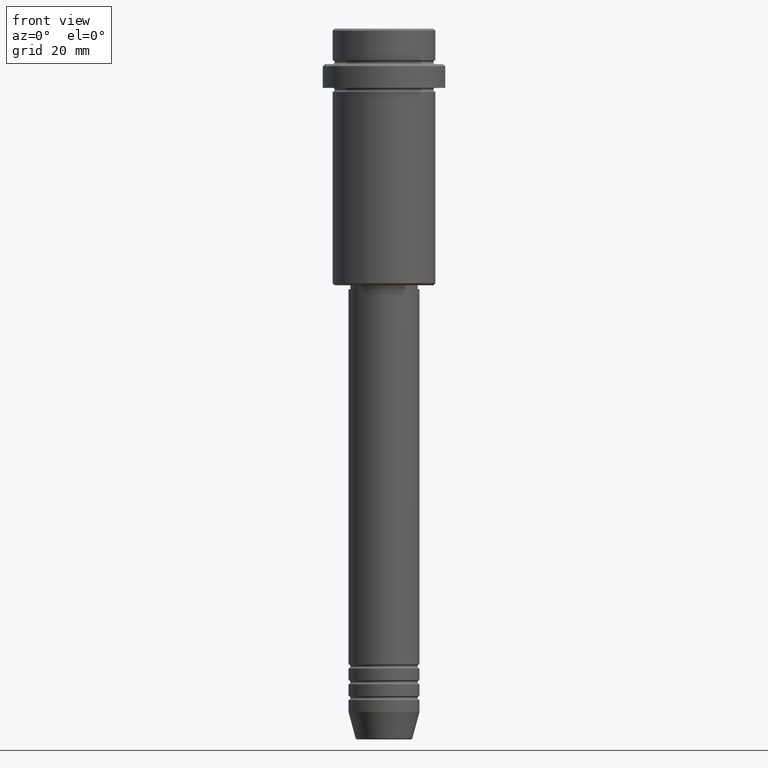
[diagram: clean part render]
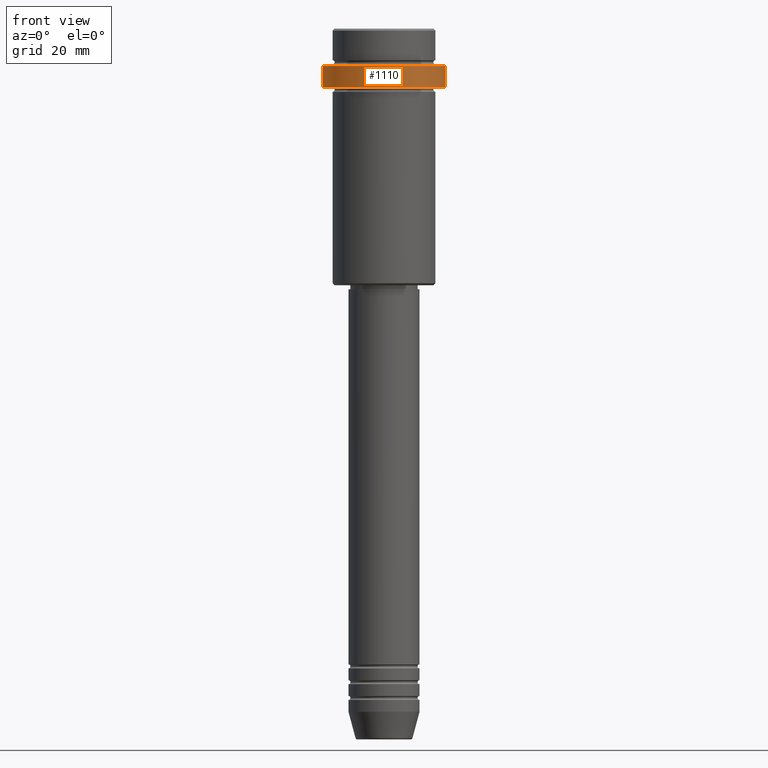
[diagram: same view with one face highlighted and labeled with its STEP entity id]
A machine part, front view. The second image highlights one B-rep face of the part: STEP entity #1110.
In plain terms, the highlighted cylindrical surface (partial cylindrical patch) has radius 15.5 mm, axis along (-0, -0, 1).
Its self-contained STEP definition (entity closure, byte-faithful):
#16 = AXIS2_PLACEMENT_3D ( 'NONE', #186, #971, #1400 ) ;
#19 = CARTESIAN_POINT ( 'NONE',  ( -15.50000000000000000, 1.898202538678397557E-15, 0.000000000000000000 ) ) ;
#72 = VERTEX_POINT ( 'NONE', #913 ) ;
#118 = VERTEX_POINT ( 'NONE', #224 ) ;
#123 = AXIS2_PLACEMENT_3D ( 'NONE', #652, #524, #1162 ) ;
#153 = DIRECTION ( 'NONE',  ( -0.000000000000000000, -0.000000000000000000, 1.000000000000000000 ) ) ;
#186 = CARTESIAN_POINT ( 'NONE',  ( 0.000000000000000000, 0.000000000000000000, -14.99999999999998757 ) ) ;
#221 = EDGE_CURVE ( 'NONE', #325, #1338, #835, .T. ) ;
#224 = CARTESIAN_POINT ( 'NONE',  ( -15.50000000000000000, 1.898202538678397557E-15, -9.500000000000026645 ) ) ;
#261 = VECTOR ( 'NONE', #153, 1000.000000000000000 ) ;
#267 = FACE_OUTER_BOUND ( 'NONE', #842, .T. ) ;
#272 = CARTESIAN_POINT ( 'NONE',  ( 0.000000000000000000, 0.000000000000000000, 0.000000000000000000 ) ) ;
#325 = VERTEX_POINT ( 'NONE', #1195 ) ;
#339 = ORIENTED_EDGE ( 'NONE', *, *, #221, .T. ) ;
#496 = CYLINDRICAL_SURFACE ( 'NONE', #1057, 15.50000000000000000 ) ;
#509 = EDGE_CURVE ( 'NONE', #72, #118, #696, .T. ) ;
#524 = DIRECTION ( 'NONE',  ( 0.000000000000000000, 0.000000000000000000, -1.000000000000000000 ) ) ;
#613 = ORIENTED_EDGE ( 'NONE', *, *, #725, .T. ) ;
#652 = CARTESIAN_POINT ( 'NONE',  ( 0.000000000000000000, 0.000000000000000000, -9.500000000000026645 ) ) ;
#696 = LINE ( 'NONE', #19, #1105 ) ;
#719 = CARTESIAN_POINT ( 'NONE',  ( 15.50000000000000000, 0.000000000000000000, 0.000000000000000000 ) ) ;
#724 = DIRECTION ( 'NONE',  ( -0.000000000000000000, -0.000000000000000000, 1.000000000000000000 ) ) ;
#725 = EDGE_CURVE ( 'NONE', #72, #325, #1365, .T. ) ;
#835 = LINE ( 'NONE', #719, #261 ) ;
#842 = EDGE_LOOP ( 'NONE', ( #875, #613, #339, #1265 ) ) ;
#875 = ORIENTED_EDGE ( 'NONE', *, *, #509, .F. ) ;
#913 = CARTESIAN_POINT ( 'NONE',  ( -15.50000000000000000, 1.898202538678397557E-15, -14.99999999999998757 ) ) ;
#971 = DIRECTION ( 'NONE',  ( -0.000000000000000000, -0.000000000000000000, 1.000000000000000000 ) ) ;
#1057 = AXIS2_PLACEMENT_3D ( 'NONE', #272, #724, #1157 ) ;
#1105 = VECTOR ( 'NONE', #1228, 1000.000000000000000 ) ;
#1110 = ADVANCED_FACE ( 'NONE', ( #267 ), #496, .T. ) ;
#1134 = EDGE_CURVE ( 'NONE', #1338, #118, #1233, .T. ) ;
#1157 = DIRECTION ( 'NONE',  ( 1.000000000000000000, 0.000000000000000000, 0.000000000000000000 ) ) ;
#1162 = DIRECTION ( 'NONE',  ( 1.000000000000000000, 0.000000000000000000, 0.000000000000000000 ) ) ;
#1195 = CARTESIAN_POINT ( 'NONE',  ( 15.50000000000000000, 0.000000000000000000, -14.99999999999998757 ) ) ;
#1228 = DIRECTION ( 'NONE',  ( -0.000000000000000000, -0.000000000000000000, 1.000000000000000000 ) ) ;
#1233 = CIRCLE ( 'NONE', #123, 15.50000000000000000 ) ;
#1265 = ORIENTED_EDGE ( 'NONE', *, *, #1134, .T. ) ;
#1338 = VERTEX_POINT ( 'NONE', #1349 ) ;
#1349 = CARTESIAN_POINT ( 'NONE',  ( 15.50000000000000000, 0.000000000000000000, -9.500000000000026645 ) ) ;
#1365 = CIRCLE ( 'NONE', #16, 15.50000000000000000 ) ;
#1400 = DIRECTION ( 'NONE',  ( 1.000000000000000000, 0.000000000000000000, 0.000000000000000000 ) ) ;